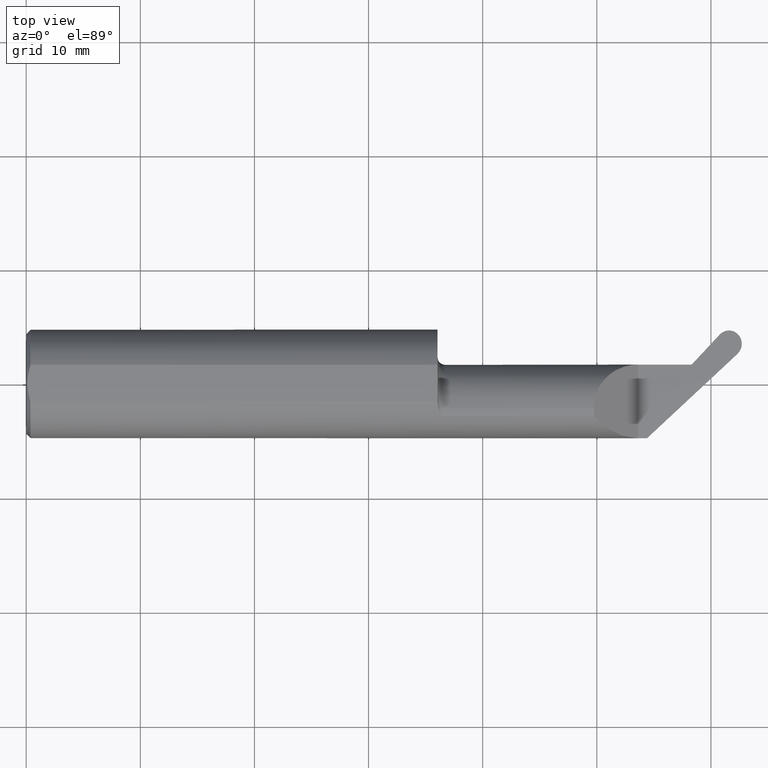
[diagram: clean part render]
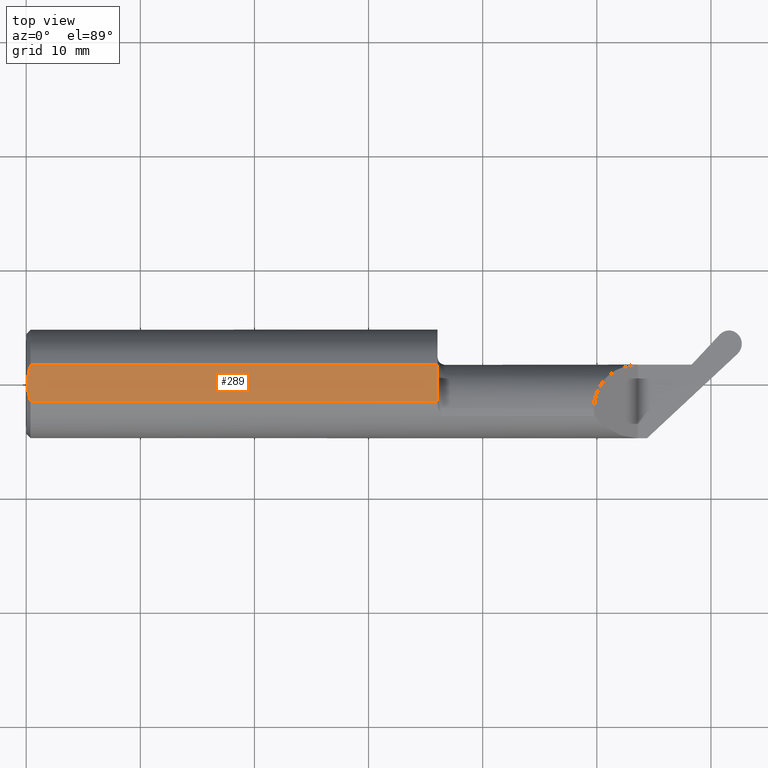
[diagram: same view with one face highlighted and labeled with its STEP entity id]
A machine part, top view. The second image highlights one B-rep face of the part: STEP entity #289.
In plain terms, the highlighted planar face has unit normal (-0, 0, -1).
Its self-contained STEP definition (entity closure, byte-faithful):
#15 = VECTOR ( 'NONE', #666, 39.37007874015748143 ) ;
#67 = CARTESIAN_POINT ( 'NONE',  ( 0.01500000000000079568, 0.06325108694718227509, 0.1763499999999999512 ) ) ;
#103 = ORIENTED_EDGE ( 'NONE', *, *, #784, .F. ) ;
#112 = VERTEX_POINT ( 'NONE', #145 ) ;
#145 = CARTESIAN_POINT ( 'NONE',  ( 0.01500000000000079568, 0.06325108694718227509, 0.1763499999999999512 ) ) ;
#171 = CARTESIAN_POINT ( 'NONE',  ( 2.500000000000000000, 0.06325108694718227509, 0.1763499999999999512 ) ) ;
#188 = CARTESIAN_POINT ( 'NONE',  ( 1.418999999999999817, -0.06325108694718373226, 0.1763499999999999512 ) ) ;
#218 = CARTESIAN_POINT ( 'NONE',  ( 0.004000000000000662748, 2.159664630158893524E-17, 0.1763499999999999512 ) ) ;
#225 = EDGE_LOOP ( 'NONE', ( #600, #735, #265, #796, #103 ) ) ;
#228 = LINE ( 'NONE', #414, #540 ) ;
#260 = CARTESIAN_POINT ( 'NONE',  ( 1.418999999999999817, 0.06325108694718227509, 0.1763499999999999512 ) ) ;
#261 = VERTEX_POINT ( 'NONE', #218 ) ;
#265 = ORIENTED_EDGE ( 'NONE', *, *, #571, .T. ) ;
#286 = FACE_OUTER_BOUND ( 'NONE', #225, .T. ) ;
#289 = ADVANCED_FACE ( 'NONE', ( #286 ), #794, .F. ) ;
#292 = VECTOR ( 'NONE', #531, 39.37007874015748143 ) ;
#348 = CARTESIAN_POINT ( 'NONE',  ( 0.000000000000000000, 0.1000000000000000056, 0.1763499999999999512 ) ) ;
#358 = DIRECTION ( 'NONE',  ( -1.000000000000000000, -0.000000000000000000, -0.000000000000000000 ) ) ;
#414 = CARTESIAN_POINT ( 'NONE',  ( 2.500000000000000000, -0.06325108694718227509, 0.1763499999999999512 ) ) ;
#420 = EDGE_CURVE ( 'NONE', #261, #509, #444, .T. ) ;
#424 = VERTEX_POINT ( 'NONE', #188 ) ;
#437 = CARTESIAN_POINT ( 'NONE',  ( 0.004000000000000662748, 2.159664630158893524E-17, 0.1763499999999999512 ) ) ;
#441 = CARTESIAN_POINT ( 'NONE',  ( 0.01500000000000016251, -0.06325108694718371838, 0.1763499999999999512 ) ) ;
#444 = B_SPLINE_CURVE_WITH_KNOTS ( 'NONE', 3,
 ( #437, #627, #697, #441 ),
 .UNSPECIFIED., .F., .F.,
 ( 4, 4 ),
 ( 0.005496776235116782039, 0.007121625476792167730 ),
 .UNSPECIFIED. ) ;
#447 = CARTESIAN_POINT ( 'NONE',  ( 0.008079618022130571897, 0.04275288484297757458, 0.1763499999999999512 ) ) ;
#509 = VERTEX_POINT ( 'NONE', #680 ) ;
#531 = DIRECTION ( 'NONE',  ( 0.000000000000000000, -1.000000000000000000, 0.000000000000000000 ) ) ;
#540 = VECTOR ( 'NONE', #358, 39.37007874015748143 ) ;
#571 = EDGE_CURVE ( 'NONE', #112, #261, #673, .T. ) ;
#577 = VERTEX_POINT ( 'NONE', #260 ) ;
#589 = AXIS2_PLACEMENT_3D ( 'NONE', #348, #598, #679 ) ;
#598 = DIRECTION ( 'NONE',  ( -0.000000000000000000, 0.000000000000000000, -1.000000000000000000 ) ) ;
#600 = ORIENTED_EDGE ( 'NONE', *, *, #804, .F. ) ;
#627 = CARTESIAN_POINT ( 'NONE',  ( 0.004000000000000660146, -0.02175731046388920675, 0.1763499999999999512 ) ) ;
#666 = DIRECTION ( 'NONE',  ( 1.000000000000000000, 0.000000000000000000, 0.000000000000000000 ) ) ;
#671 = CARTESIAN_POINT ( 'NONE',  ( 1.418999999999999817, 0.1000000000000000056, 0.1763499999999999512 ) ) ;
#673 = B_SPLINE_CURVE_WITH_KNOTS ( 'NONE', 3,
 ( #67, #447, #815, #708 ),
 .UNSPECIFIED., .F., .F.,
 ( 4, 4 ),
 ( 0.003872958501701102233, 0.005496776235116782039 ),
 .UNSPECIFIED. ) ;
#678 = LINE ( 'NONE', #671, #292 ) ;
#679 = DIRECTION ( 'NONE',  ( -1.000000000000000000, 0.000000000000000000, 0.000000000000000000 ) ) ;
#680 = CARTESIAN_POINT ( 'NONE',  ( 0.01500000000000016251, -0.06325108694718371838, 0.1763499999999999512 ) ) ;
#697 = CARTESIAN_POINT ( 'NONE',  ( 0.008096539338608519515, -0.04280300585742027875, 0.1763499999999999512 ) ) ;
#708 = CARTESIAN_POINT ( 'NONE',  ( 0.004000000000000662748, 2.159664630158893524E-17, 0.1763499999999999512 ) ) ;
#728 = LINE ( 'NONE', #171, #15 ) ;
#735 = ORIENTED_EDGE ( 'NONE', *, *, #743, .F. ) ;
#743 = EDGE_CURVE ( 'NONE', #112, #577, #728, .T. ) ;
#784 = EDGE_CURVE ( 'NONE', #424, #509, #228, .T. ) ;
#794 = PLANE ( 'NONE',  #589 ) ;
#796 = ORIENTED_EDGE ( 'NONE', *, *, #420, .T. ) ;
#804 = EDGE_CURVE ( 'NONE', #577, #424, #678, .T. ) ;
#815 = CARTESIAN_POINT ( 'NONE',  ( 0.004000000000000663615, 0.02174349820064852903, 0.1763499999999999512 ) ) ;